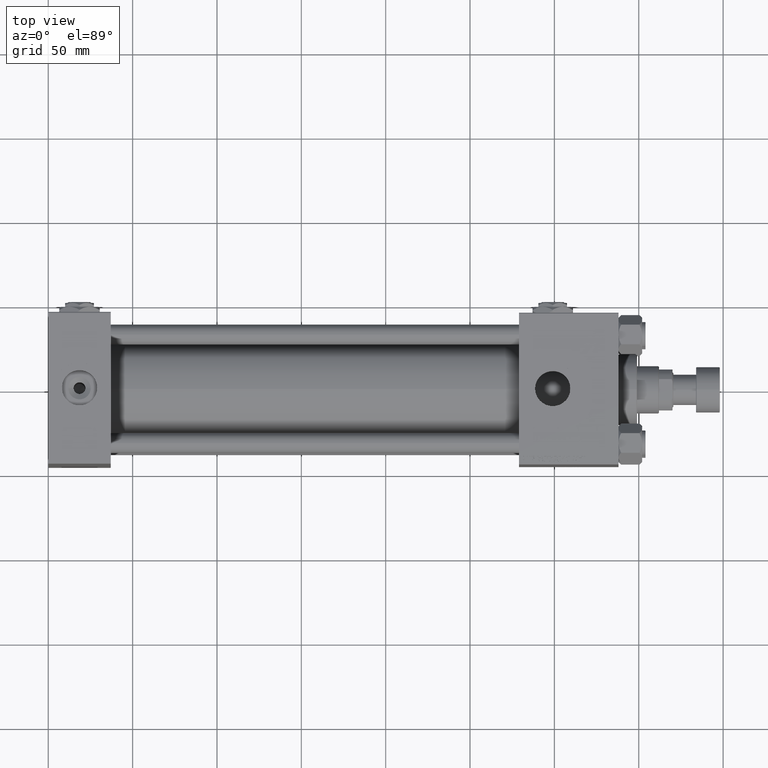
[diagram: clean part render]
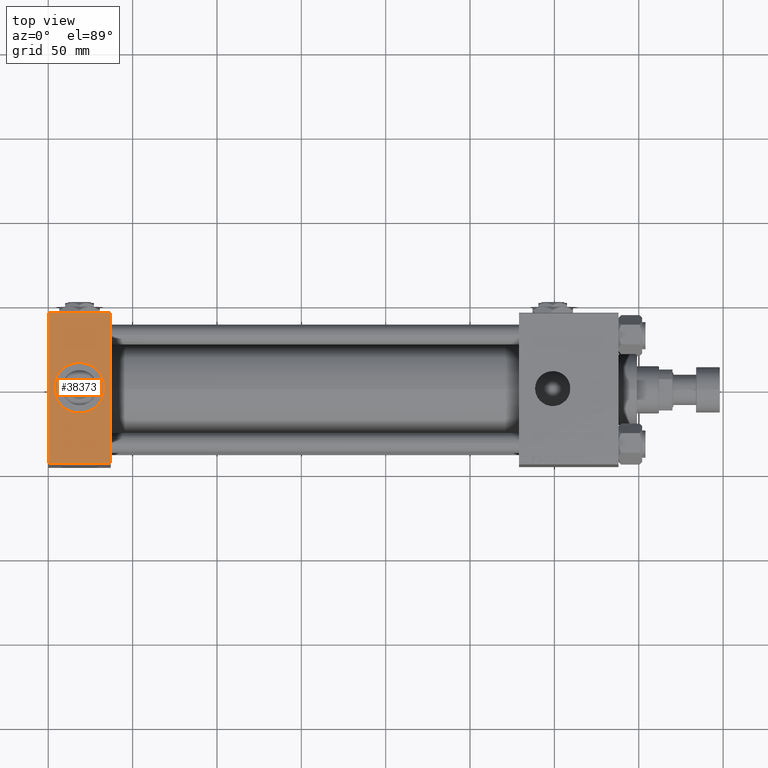
[diagram: same view with one face highlighted and labeled with its STEP entity id]
A machine part, top view. The second image highlights one B-rep face of the part: STEP entity #38373.
In plain terms, the highlighted planar face has unit normal (0, 0, -1).
Its self-contained STEP definition (entity closure, byte-faithful):
#1000 = DIRECTION ( 'NONE',  ( 0.000000000000000000, 0.000000000000000000, 1.000000000000000000 ) ) ;
#1345 = EDGE_CURVE ( 'NONE', #5071, #43146, #2590, .T. ) ;
#1735 = DIRECTION ( 'NONE',  ( 0.000000000000000000, 1.541976423090495633E-16, -1.000000000000000000 ) ) ;
#2532 = VERTEX_POINT ( 'NONE', #48301 ) ;
#2590 = LINE ( 'NONE', #26549, #17431 ) ;
#3582 = ORIENTED_EDGE ( 'NONE', *, *, #1345, .T. ) ;
#5071 = VERTEX_POINT ( 'NONE', #33711 ) ;
#5452 = DIRECTION ( 'NONE',  ( 0.000000000000000000, 1.000000000000000000, 1.541976423090495633E-16 ) ) ;
#5921 = CARTESIAN_POINT ( 'NONE',  ( 37.00000000000000000, 44.50000000000000711, 71.00000000000000000 ) ) ;
#7114 = ORIENTED_EDGE ( 'NONE', *, *, #16066, .F. ) ;
#7928 = CARTESIAN_POINT ( 'NONE',  ( 18.50000000000000000, -1.268275607991932333E-14, 70.99999999999998579 ) ) ;
#10353 = EDGE_CURVE ( 'NONE', #23890, #5071, #18473, .T. ) ;
#11319 = EDGE_LOOP ( 'NONE', ( #34127, #7114 ) ) ;
#11678 = DIRECTION ( 'NONE',  ( 1.000000000000000000, 0.000000000000000000, 0.000000000000000000 ) ) ;
#12467 = DIRECTION ( 'NONE',  ( 1.000000000000000000, 0.000000000000000000, 0.000000000000000000 ) ) ;
#12548 = LINE ( 'NONE', #37744, #44202 ) ;
#14215 = CARTESIAN_POINT ( 'NONE',  ( 0.000000000000000000, 44.50000000000000711, 71.00000000000000000 ) ) ;
#16066 = EDGE_CURVE ( 'NONE', #17155, #2532, #33497, .T. ) ;
#16895 = EDGE_LOOP ( 'NONE', ( #3582, #36469, #26384, #45277 ) ) ;
#17155 = VERTEX_POINT ( 'NONE', #41929 ) ;
#17431 = VECTOR ( 'NONE', #47242, 1000.000000000000000 ) ;
#18431 = CARTESIAN_POINT ( 'NONE',  ( 37.00000000000000000, -44.50000000000002132, 70.99999999999998579 ) ) ;
#18473 = LINE ( 'NONE', #14215, #21022 ) ;
#20513 = VERTEX_POINT ( 'NONE', #30226 ) ;
#21022 = VECTOR ( 'NONE', #42361, 1000.000000000000000 ) ;
#23890 = VERTEX_POINT ( 'NONE', #5921 ) ;
#24706 = DIRECTION ( 'NONE',  ( 0.000000000000000000, 0.000000000000000000, 1.000000000000000000 ) ) ;
#26384 = ORIENTED_EDGE ( 'NONE', *, *, #42439, .F. ) ;
#26549 = CARTESIAN_POINT ( 'NONE',  ( 0.000000000000000000, 45.00000000000000711, 71.00000000000000000 ) ) ;
#28659 = EDGE_CURVE ( 'NONE', #2532, #17155, #33836, .T. ) ;
#29143 = FACE_OUTER_BOUND ( 'NONE', #16895, .T. ) ;
#30226 = CARTESIAN_POINT ( 'NONE',  ( 37.00000000000000000, -44.49999999999999289, 70.99999999999998579 ) ) ;
#32916 = CARTESIAN_POINT ( 'NONE',  ( 18.50000000000000000, -1.268275607991932333E-14, 70.99999999999998579 ) ) ;
#33396 = VECTOR ( 'NONE', #49765, 1000.000000000000000 ) ;
#33497 = CIRCLE ( 'NONE', #37720, 15.00000000000000355 ) ;
#33711 = CARTESIAN_POINT ( 'NONE',  ( 0.000000000000000000, 44.50000000000000711, 71.00000000000000000 ) ) ;
#33836 = CIRCLE ( 'NONE', #34700, 15.00000000000000355 ) ;
#34127 = ORIENTED_EDGE ( 'NONE', *, *, #28659, .F. ) ;
#34700 = AXIS2_PLACEMENT_3D ( 'NONE', #32916, #1000, #12467 ) ;
#36469 = ORIENTED_EDGE ( 'NONE', *, *, #49324, .T. ) ;
#37720 = AXIS2_PLACEMENT_3D ( 'NONE', #7928, #24706, #11678 ) ;
#37744 = CARTESIAN_POINT ( 'NONE',  ( 37.00000000000000000, 45.00000000000000711, 71.00000000000000000 ) ) ;
#38373 = ADVANCED_FACE ( 'NONE', ( #38409, #29143 ), #41866, .F. ) ;
#38409 = FACE_BOUND ( 'NONE', #11319, .T. ) ;
#39990 = AXIS2_PLACEMENT_3D ( 'NONE', #42128, #1735, #5452 ) ;
#40955 = DIRECTION ( 'NONE',  ( 0.000000000000000000, -1.000000000000000000, -1.541976423090495387E-16 ) ) ;
#41792 = LINE ( 'NONE', #18431, #33396 ) ;
#41866 = PLANE ( 'NONE',  #39990 ) ;
#41929 = CARTESIAN_POINT ( 'NONE',  ( 3.499999999999997780, -1.084578588119829295E-14, 70.99999999999998579 ) ) ;
#42128 = CARTESIAN_POINT ( 'NONE',  ( 37.00000000000000000, 45.00000000000000711, 71.00000000000000000 ) ) ;
#42361 = DIRECTION ( 'NONE',  ( -1.000000000000000000, 0.000000000000000000, 0.000000000000000000 ) ) ;
#42439 = EDGE_CURVE ( 'NONE', #23890, #20513, #12548, .T. ) ;
#43146 = VERTEX_POINT ( 'NONE', #47639 ) ;
#44202 = VECTOR ( 'NONE', #40955, 1000.000000000000000 ) ;
#45277 = ORIENTED_EDGE ( 'NONE', *, *, #10353, .T. ) ;
#47242 = DIRECTION ( 'NONE',  ( 0.000000000000000000, -1.000000000000000000, -1.541976423090495387E-16 ) ) ;
#47639 = CARTESIAN_POINT ( 'NONE',  ( 0.000000000000000000, -44.49999999999999289, 70.99999999999998579 ) ) ;
#48301 = CARTESIAN_POINT ( 'NONE',  ( 33.50000000000000000, -1.268275607991932333E-14, 70.99999999999998579 ) ) ;
#49324 = EDGE_CURVE ( 'NONE', #43146, #20513, #41792, .T. ) ;
#49765 = DIRECTION ( 'NONE',  ( 1.000000000000000000, 0.000000000000000000, 0.000000000000000000 ) ) ;